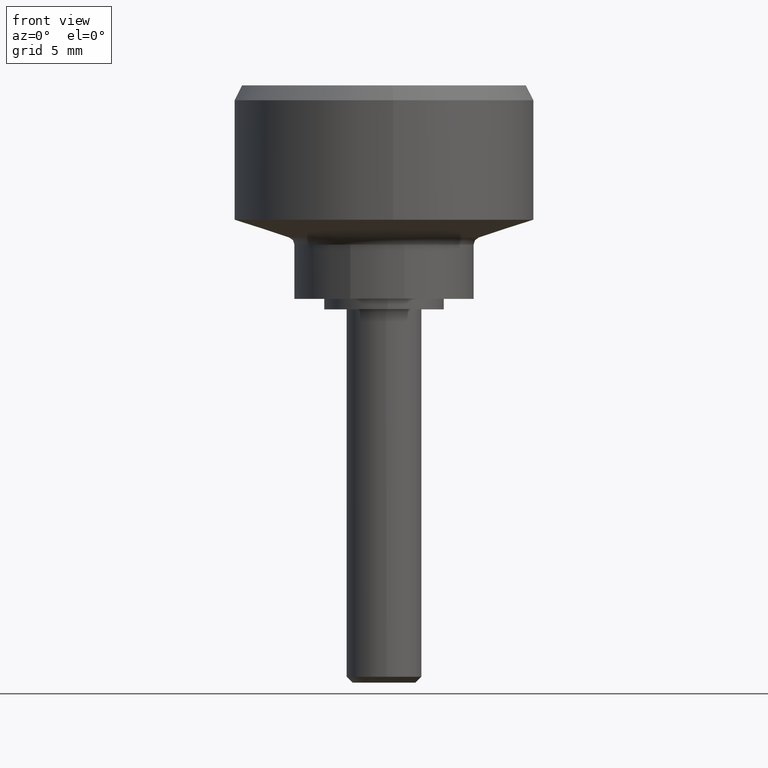
[diagram: clean part render]
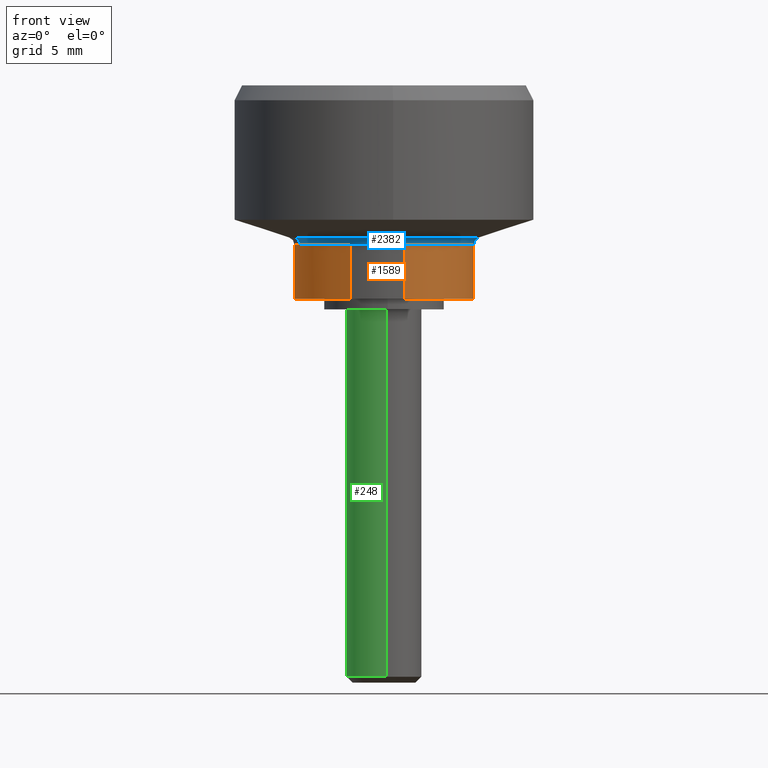
[diagram: same view with three faces highlighted in distinct colors, each labeled with its STEP entity id]
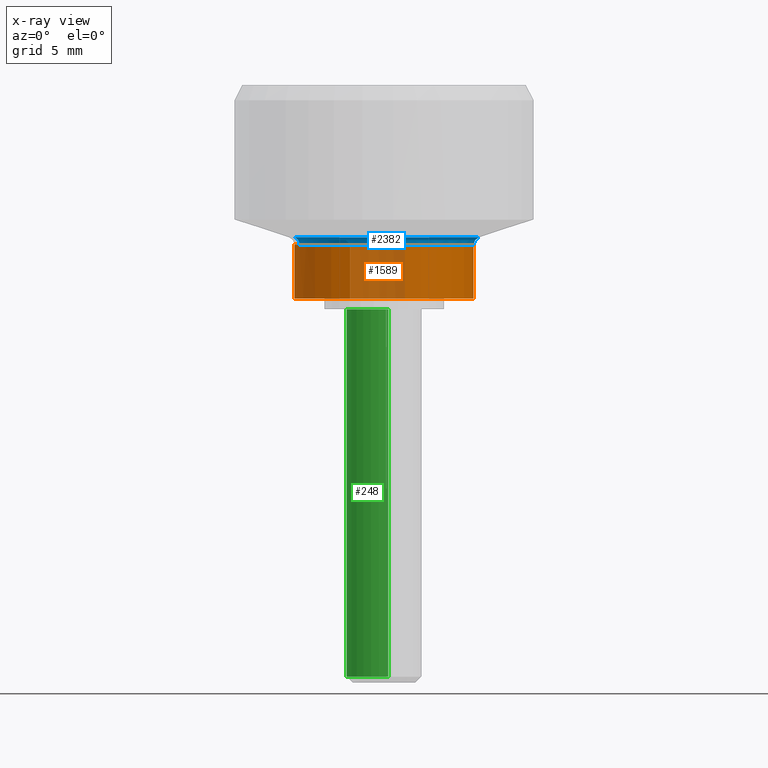
[diagram: x-ray of the same camera — body ghosted, the three highlighted faces saturated]
A machine part, front view with three faces highlighted in distinct colors.
The next image is the same camera in x-ray (body ghosted, the three faces saturated) — at least one of them is partly hidden behind the body in this view.
Their STEP definitions:

[orange] entity #1589 — the highlighted face is a freeform B-spline surface patch.
#1423=CARTESIAN_POINT('',(-2.250411537958607,-5.561982372304211,4.427679925209729));
#1424=CARTESIAN_POINT('',(-5.113267461140326,-4.403653638088490,4.427679925209729));
#1425=CARTESIAN_POINT('',(-5.834219522386058,-1.400672183135433,4.427679925209728));
#1426=CARTESIAN_POINT('',(-7.234891705521491,4.433547339250625,4.427679925209729));
#1427=CARTESIAN_POINT('',(-1.400672183135433,5.834219522386058,4.427679925209728));
#1428=CARTESIAN_POINT('',(4.433547339250625,7.234891705521491,4.427679925209729));
#1429=CARTESIAN_POINT('',(5.834219522386058,1.400672183135433,4.427679925209728));
#1430=CARTESIAN_POINT('',(7.234891705521491,-4.433547339250625,4.427679925209729));
#1431=CARTESIAN_POINT('',(1.400672183135433,-5.834219522386058,4.427679925209728));
#1432=CARTESIAN_POINT('',(-2.250411537958607,-5.561982372304211,0.606812101869865));
#1433=CARTESIAN_POINT('',(-5.113267461140326,-4.403653638088490,0.606812101869865));
#1434=CARTESIAN_POINT('',(-5.834219522386058,-1.400672183135433,0.606812101869865));
#1435=CARTESIAN_POINT('',(-7.234891705521491,4.433547339250625,0.606812101869865));
#1436=CARTESIAN_POINT('',(-1.400672183135433,5.834219522386058,0.606812101869865));
#1437=CARTESIAN_POINT('',(4.433547339250625,7.234891705521491,0.606812101869865));
#1438=CARTESIAN_POINT('',(5.834219522386058,1.400672183135433,0.606812101869865));
#1439=CARTESIAN_POINT('',(7.234891705521491,-4.433547339250625,0.606812101869865));
#1440=CARTESIAN_POINT('',(1.400672183135433,-5.834219522386058,0.606812101869865));
#1448=(BOUNDED_SURFACE()B_SPLINE_SURFACE(2,1,((#1423,#1432),(#1424,#1433),(#1425,#1434),(#1426,#1435),(#1427,#1436),(#1428,#1437),(#1429,#1438),(#1430,#1439),(#1431,#1440)),.UNSPECIFIED.,.F.,.F.,.U.)B_SPLINE_SURFACE_WITH_KNOTS((3,2,2,2,3),(2,2),(0.0,5.964675298172566,15.905800795126840,25.846926292081118,35.788051789035400),(0.0,3.820867823339863),.UNSPECIFIED.)GEOMETRIC_REPRESENTATION_ITEM()RATIONAL_B_SPLINE_SURFACE(((0.859411254969543,0.859411254969543),(0.824264068711928,0.824264068711928),(1.0,1.0),(0.707106781186548,0.707106781186548),(1.0,1.0),(0.707106781186548,0.707106781186548),(1.0,1.0),(0.707106781186548,0.707106781186548),(1.0,1.0)))REPRESENTATION_ITEM('')SURFACE());
#1449=CARTESIAN_POINT('',(-2.250411537961152,-5.561982372302829,4.336761000021973));
#1450=VERTEX_POINT('',#1449);
#1451=CARTESIAN_POINT('',(-5.657943215354542,-1.996917267145412,4.336761000200806));
#1452=VERTEX_POINT('',#1451);
#1453=CARTESIAN_POINT('',(-2.250411537961152,-5.561982372302829,4.336761000021974));
#1454=CARTESIAN_POINT('',(-4.757738268930517,-4.547502888705879,4.336761000072861));
#1455=CARTESIAN_POINT('',(-5.657943215354542,-1.996917267145411,4.336761000200806));
#1463=(BOUNDED_CURVE()B_SPLINE_CURVE(2,(#1453,#1454,#1455),.UNSPECIFIED.,.F.,.U.)B_SPLINE_CURVE_WITH_KNOTS((3,3),(0.813681137942557,0.943451214484285),.UNSPECIFIED.)CURVE()GEOMETRIC_REPRESENTATION_ITEM()RATIONAL_B_SPLINE_CURVE((0.888794329336719,0.814213373906478,0.897469272749087))REPRESENTATION_ITEM(''));
#1464=EDGE_CURVE('',#1450,#1452,#1463,.T.);
#1465=ORIENTED_EDGE('',*,*,#1464,.T.);
#1466=CARTESIAN_POINT('',(-6.0,0.0,4.336761000000000));
#1467=VERTEX_POINT('',#1466);
#1468=CARTESIAN_POINT('',(-5.657943215354542,-1.996917267145412,4.336761000200806));
#1469=CARTESIAN_POINT('',(-6.0,-1.027754500222599,4.336761000000000));
#1470=CARTESIAN_POINT('',(-6.0,0.0,4.336761000000000));
#1478=(BOUNDED_CURVE()B_SPLINE_CURVE(2,(#1468,#1469,#1470),.UNSPECIFIED.,.F.,.U.)B_SPLINE_CURVE_WITH_KNOTS((3,3),(0.943451214484285,1.0),.UNSPECIFIED.)CURVE()GEOMETRIC_REPRESENTATION_ITEM()RATIONAL_B_SPLINE_CURVE((0.897469272749087,0.933748976761243,1.0))REPRESENTATION_ITEM(''));
#1479=EDGE_CURVE('',#1452,#1467,#1478,.T.);
#1480=ORIENTED_EDGE('',*,*,#1479,.T.);
#1481=CARTESIAN_POINT('',(-2.953789897803649,5.222559261476416,4.336761000204615));
#1482=VERTEX_POINT('',#1481);
#1483=CARTESIAN_POINT('',(-6.0,0.0,4.336761000000000));
#1484=CARTESIAN_POINT('',(-5.999999999999999,3.499675101438450,4.336760999999998));
#1485=CARTESIAN_POINT('',(-2.953789897803649,5.222559261476416,4.336761000204616));
#1493=(BOUNDED_CURVE()B_SPLINE_CURVE(2,(#1483,#1484,#1485),.UNSPECIFIED.,.F.,.U.)B_SPLINE_CURVE_WITH_KNOTS((3,3),(0.0,0.166092119980802),.UNSPECIFIED.)CURVE()GEOMETRIC_REPRESENTATION_ITEM()RATIONAL_B_SPLINE_CURVE((1.0,0.805410977437091,0.869379581133907))REPRESENTATION_ITEM(''));
#1494=EDGE_CURVE('',#1467,#1482,#1493,.T.);
#1495=ORIENTED_EDGE('',*,*,#1494,.T.);
#1496=CARTESIAN_POINT('',(6.0,0.0,4.336761000000000));
#1497=VERTEX_POINT('',#1496);
#1498=CARTESIAN_POINT('',(-2.953789897803649,5.222559261476416,4.336761000204616));
#1499=CARTESIAN_POINT('',(-1.579206576138345,6.0,4.336761000000000));
#1500=CARTESIAN_POINT('',(0.0,6.0,4.336761000000000));
#1501=CARTESIAN_POINT('',(6.0,6.0,4.336760999999999));
#1502=CARTESIAN_POINT('',(6.0,0.0,4.336761000000000));
#1510=(BOUNDED_CURVE()B_SPLINE_CURVE(2,(#1498,#1499,#1500,#1501,#1502),.UNSPECIFIED.,.F.,.U.)B_SPLINE_CURVE_WITH_KNOTS((3,2,3),(0.166092119980802,0.250000000000000,0.500000000000000),.UNSPECIFIED.)CURVE()GEOMETRIC_REPRESENTATION_ITEM()RATIONAL_B_SPLINE_CURVE((0.869379581133907,0.901695803749456,1.0,0.707106781186548,1.0))REPRESENTATION_ITEM(''));
#1511=EDGE_CURVE('',#1482,#1497,#1510,.T.);
#1512=ORIENTED_EDGE('',*,*,#1511,.T.);
#1513=CARTESIAN_POINT('',(1.400667270744406,-5.834220701742426,4.336761000000084));
#1514=VERTEX_POINT('',#1513);
#1515=CARTESIAN_POINT('',(6.0,0.0,4.336761000000000));
#1516=CARTESIAN_POINT('',(6.0,-4.730022703337070,4.336761000000000));
#1517=CARTESIAN_POINT('',(1.400667270744407,-5.834220701742426,4.336761000000085));
#1525=(BOUNDED_CURVE()B_SPLINE_CURVE(2,(#1515,#1516,#1517),.UNSPECIFIED.,.F.,.U.)B_SPLINE_CURVE_WITH_KNOTS((3,3),(0.500000000000000,0.710109967540306),.UNSPECIFIED.)CURVE()GEOMETRIC_REPRESENTATION_ITEM()RATIONAL_B_SPLINE_CURVE((1.0,0.753840861209320,0.921445631707115))REPRESENTATION_ITEM(''));
#1526=EDGE_CURVE('',#1497,#1514,#1525,.T.);
#1527=ORIENTED_EDGE('',*,*,#1526,.T.);
#1528=CARTESIAN_POINT('',(1.400667329988205,-5.834220687519354,0.700004000000106));
#1529=VERTEX_POINT('',#1528);
#1530=CARTESIAN_POINT('',(1.400667270744406,-5.834220701742426,4.336761000000084));
#1531=CARTESIAN_POINT('',(1.400667329988205,-5.834220687519354,0.700004000000106));
#1532=QUASI_UNIFORM_CURVE('',1,(#1530,#1531),.UNSPECIFIED.,.F.,.U.);
#1533=EDGE_CURVE('',#1514,#1529,#1532,.T.);
#1534=ORIENTED_EDGE('',*,*,#1533,.T.);
#1535=CARTESIAN_POINT('',(6.0,0.0,0.700004000000106));
#1536=VERTEX_POINT('',#1535);
#1537=CARTESIAN_POINT('',(6.0,0.0,0.700004000000106));
#1538=CARTESIAN_POINT('',(6.000000000000001,-4.730022653941092,0.700004000000106));
#1539=CARTESIAN_POINT('',(1.400667329988206,-5.834220687519354,0.700004000000106));
#1547=(BOUNDED_CURVE()B_SPLINE_CURVE(2,(#1537,#1538,#1539),.UNSPECIFIED.,.F.,.U.)B_SPLINE_CURVE_WITH_KNOTS((3,3),(0.500000000000000,0.710109965886232),.UNSPECIFIED.)CURVE()GEOMETRIC_REPRESENTATION_ITEM()RATIONAL_B_SPLINE_CURVE((1.0,0.753840863147187,0.921445629068206))REPRESENTATION_ITEM(''));
#1548=EDGE_CURVE('',#1536,#1529,#1547,.T.);
#1549=ORIENTED_EDGE('',*,*,#1548,.F.);
#1550=CARTESIAN_POINT('',(-6.0,0.0,0.700004000000106));
#1551=VERTEX_POINT('',#1550);
#1552=CARTESIAN_POINT('',(-6.0,0.0,0.700004000000106));
#1553=CARTESIAN_POINT('',(-6.0,6.0,0.700004000000106));
#1554=CARTESIAN_POINT('',(0.0,6.0,0.700004000000106));
#1555=CARTESIAN_POINT('',(6.0,6.0,0.700004000000106));
#1556=CARTESIAN_POINT('',(6.0,0.0,0.700004000000106));
#1564=(BOUNDED_CURVE()B_SPLINE_CURVE(2,(#1552,#1553,#1554,#1555,#1556),.UNSPECIFIED.,.F.,.U.)B_SPLINE_CURVE_WITH_KNOTS((3,2,3),(0.0,0.250000000000000,0.500000000000000),.UNSPECIFIED.)CURVE()GEOMETRIC_REPRESENTATION_ITEM()RATIONAL_B_SPLINE_CURVE((1.0,0.707106781186548,1.0,0.707106781186548,1.0))REPRESENTATION_ITEM(''));
#1565=EDGE_CURVE('',#1551,#1536,#1564,.T.);
#1566=ORIENTED_EDGE('',*,*,#1565,.F.);
#1567=CARTESIAN_POINT('',(-2.250407903422638,-5.561983842856572,0.700004000000106));
#1568=VERTEX_POINT('',#1567);
#1569=CARTESIAN_POINT('',(-2.250407903422639,-5.561983842856572,0.700004000000106));
#1570=CARTESIAN_POINT('',(-6.0,-4.044879168131852,0.700004000000106));
#1571=CARTESIAN_POINT('',(-6.0,0.0,0.700004000000106));
#1579=(BOUNDED_CURVE()B_SPLINE_CURVE(2,(#1569,#1570,#1571),.UNSPECIFIED.,.F.,.U.)B_SPLINE_CURVE_WITH_KNOTS((3,3),(0.813681035271949,1.0),.UNSPECIFIED.)CURVE()GEOMETRIC_REPRESENTATION_ITEM()RATIONAL_B_SPLINE_CURVE((0.888794447349726,0.781713754779244,1.0))REPRESENTATION_ITEM(''));
#1580=EDGE_CURVE('',#1568,#1551,#1579,.T.);
#1581=ORIENTED_EDGE('',*,*,#1580,.F.);
#1582=CARTESIAN_POINT('',(-2.250411537961152,-5.561982372302829,4.336761000021973));
#1583=CARTESIAN_POINT('',(-2.250407903422638,-5.561983842856572,0.700004000000106));
#1584=QUASI_UNIFORM_CURVE('',1,(#1582,#1583),.UNSPECIFIED.,.F.,.U.);
#1585=EDGE_CURVE('',#1450,#1568,#1584,.T.);
#1586=ORIENTED_EDGE('',*,*,#1585,.F.);
#1587=EDGE_LOOP('',(#1465,#1480,#1495,#1512,#1527,#1534,#1549,#1566,#1581,#1586));
#1588=FACE_OUTER_BOUND('',#1587,.T.);
#1589=ADVANCED_FACE('',(#1588),#1448,.T.);

[blue] entity #2382 — the highlighted face is a freeform B-spline surface patch.
#1449=CARTESIAN_POINT('',(-2.250411537961152,-5.561982372302829,4.336761000021973));
#1450=VERTEX_POINT('',#1449);
#1451=CARTESIAN_POINT('',(-5.657943215354542,-1.996917267145412,4.336761000200806));
#1452=VERTEX_POINT('',#1451);
#1453=CARTESIAN_POINT('',(-2.250411537961152,-5.561982372302829,4.336761000021974));
#1454=CARTESIAN_POINT('',(-4.757738268930517,-4.547502888705879,4.336761000072861));
#1455=CARTESIAN_POINT('',(-5.657943215354542,-1.996917267145411,4.336761000200806));
#1463=(BOUNDED_CURVE()B_SPLINE_CURVE(2,(#1453,#1454,#1455),.UNSPECIFIED.,.F.,.U.)B_SPLINE_CURVE_WITH_KNOTS((3,3),(0.813681137942557,0.943451214484285),.UNSPECIFIED.)CURVE()GEOMETRIC_REPRESENTATION_ITEM()RATIONAL_B_SPLINE_CURVE((0.888794329336719,0.814213373906478,0.897469272749087))REPRESENTATION_ITEM(''));
#1464=EDGE_CURVE('',#1450,#1452,#1463,.T.);
#1481=CARTESIAN_POINT('',(-2.953789897803649,5.222559261476416,4.336761000204615));
#1482=VERTEX_POINT('',#1481);
#1496=CARTESIAN_POINT('',(6.0,0.0,4.336761000000000));
#1497=VERTEX_POINT('',#1496);
#1498=CARTESIAN_POINT('',(-2.953789897803649,5.222559261476416,4.336761000204616));
#1499=CARTESIAN_POINT('',(-1.579206576138345,6.0,4.336761000000000));
#1500=CARTESIAN_POINT('',(0.0,6.0,4.336761000000000));
#1501=CARTESIAN_POINT('',(6.0,6.0,4.336760999999999));
#1502=CARTESIAN_POINT('',(6.0,0.0,4.336761000000000));
#1510=(BOUNDED_CURVE()B_SPLINE_CURVE(2,(#1498,#1499,#1500,#1501,#1502),.UNSPECIFIED.,.F.,.U.)B_SPLINE_CURVE_WITH_KNOTS((3,2,3),(0.166092119980802,0.250000000000000,0.500000000000000),.UNSPECIFIED.)CURVE()GEOMETRIC_REPRESENTATION_ITEM()RATIONAL_B_SPLINE_CURVE((0.869379581133907,0.901695803749456,1.0,0.707106781186548,1.0))REPRESENTATION_ITEM(''));
#1511=EDGE_CURVE('',#1482,#1497,#1510,.T.);
#1513=CARTESIAN_POINT('',(1.400667270744406,-5.834220701742426,4.336761000000084));
#1514=VERTEX_POINT('',#1513);
#1515=CARTESIAN_POINT('',(6.0,0.0,4.336761000000000));
#1516=CARTESIAN_POINT('',(6.0,-4.730022703337070,4.336761000000000));
#1517=CARTESIAN_POINT('',(1.400667270744407,-5.834220701742426,4.336761000000085));
#1525=(BOUNDED_CURVE()B_SPLINE_CURVE(2,(#1515,#1516,#1517),.UNSPECIFIED.,.F.,.U.)B_SPLINE_CURVE_WITH_KNOTS((3,3),(0.500000000000000,0.710109967540306),.UNSPECIFIED.)CURVE()GEOMETRIC_REPRESENTATION_ITEM()RATIONAL_B_SPLINE_CURVE((1.0,0.753840861209320,0.921445631707115))REPRESENTATION_ITEM(''));
#1526=EDGE_CURVE('',#1497,#1514,#1525,.T.);
#1604=CARTESIAN_POINT('',(1.400667270744407,-5.834220701742426,4.336761000000085));
#1605=CARTESIAN_POINT('',(0.710144236470980,-5.999999999999998,4.336761000000000));
#1606=CARTESIAN_POINT('',(0.0,-6.0,4.336761000000000));
#1607=CARTESIAN_POINT('',(-1.167833403735920,-6.0,4.336761000000000));
#1608=CARTESIAN_POINT('',(-2.250411537961152,-5.561982372302829,4.336761000021974));
#1616=(BOUNDED_CURVE()B_SPLINE_CURVE(2,(#1604,#1605,#1606,#1607,#1608),.UNSPECIFIED.,.F.,.U.)B_SPLINE_CURVE_WITH_KNOTS((3,2,3),(0.710109967540306,0.750000000000000,0.813681137942557),.UNSPECIFIED.)CURVE()GEOMETRIC_REPRESENTATION_ITEM()RATIONAL_B_SPLINE_CURVE((0.921445631707115,0.953265919977228,1.0,0.925392906121203,0.888794329336719))REPRESENTATION_ITEM(''));
#1617=EDGE_CURVE('',#1514,#1450,#1616,.T.);
#1674=CARTESIAN_POINT('',(-1.588775553529751,6.143339237225591,4.812278946800051));
#1675=VERTEX_POINT('',#1674);
#1681=CARTESIAN_POINT('',(-3.123857866212917,5.523254325850536,4.812278568579362));
#1682=VERTEX_POINT('',#1681);
#1683=CARTESIAN_POINT('',(-3.123857866212916,5.523254325850536,4.812278568579362));
#1684=CARTESIAN_POINT('',(-2.397111881622605,5.934289303143255,4.812278784254910));
#1685=CARTESIAN_POINT('',(-1.588775553529752,6.143339237225590,4.812278946800051));
#1693=(BOUNDED_CURVE()B_SPLINE_CURVE(2,(#1683,#1684,#1685),.UNSPECIFIED.,.F.,.U.)B_SPLINE_CURVE_WITH_KNOTS((3,3),(0.166092119980571,0.207273770511149),.UNSPECIFIED.)CURVE()GEOMETRIC_REPRESENTATION_ITEM()RATIONAL_B_SPLINE_CURVE((0.869379581133729,0.885240253408013,0.916996154818404))REPRESENTATION_ITEM(''));
#1694=EDGE_CURVE('',#1682,#1675,#1693,.T.);
#1711=CARTESIAN_POINT('',(-5.983706027534104,-2.111892154719563,4.812278568087341));
#1712=VERTEX_POINT('',#1711);
#1726=CARTESIAN_POINT('',(1.588775549495736,-6.143339221656346,4.812279000004396));
#1727=VERTEX_POINT('',#1726);
#1728=CARTESIAN_POINT('',(1.588775549495735,-6.143339221656346,4.812279000004396));
#1729=CARTESIAN_POINT('',(0.807244089320079,-6.345457000000001,4.812279000000100));
#1730=CARTESIAN_POINT('',(0.0,-6.345457000000000,4.812279000000100));
#1731=CARTESIAN_POINT('',(-4.489509417337906,-6.345457000000000,4.812279000000100));
#1732=CARTESIAN_POINT('',(-5.983706027534104,-2.111892154719563,4.812278568087341));
#1740=(BOUNDED_CURVE()B_SPLINE_CURVE(2,(#1728,#1729,#1730,#1731,#1732),.UNSPECIFIED.,.F.,.U.)B_SPLINE_CURVE_WITH_KNOTS((3,2,3),(0.707273770284029,0.750000000000000,0.943451214480526),.UNSPECIFIED.)CURVE()GEOMETRIC_REPRESENTATION_ITEM()RATIONAL_B_SPLINE_CURVE((0.916996154468132,0.949943108202906,1.0,0.773357804429709,0.897469272744263))REPRESENTATION_ITEM(''));
#1741=EDGE_CURVE('',#1727,#1712,#1740,.T.);
#1847=CARTESIAN_POINT('',(6.345457000000000,0.0,4.812279000000100));
#1848=VERTEX_POINT('',#1847);
#1849=CARTESIAN_POINT('',(6.345457000000000,0.0,4.812279000000100));
#1850=CARTESIAN_POINT('',(6.345457000000000,-4.913177755189087,4.812279000000100));
#1851=CARTESIAN_POINT('',(1.588775549495736,-6.143339221656346,4.812279000004396));
#1859=(BOUNDED_CURVE()B_SPLINE_CURVE(2,(#1849,#1850,#1851),.UNSPECIFIED.,.F.,.U.)B_SPLINE_CURVE_WITH_KNOTS((3,3),(0.500000000000000,0.707273770284029),.UNSPECIFIED.)CURVE()GEOMETRIC_REPRESENTATION_ITEM()RATIONAL_B_SPLINE_CURVE((1.0,0.757163672983643,0.916996154468131))REPRESENTATION_ITEM(''));
#1860=EDGE_CURVE('',#1848,#1727,#1859,.T.);
#1862=CARTESIAN_POINT('',(-1.588775553529751,6.143339237225591,4.812278946800052));
#1863=CARTESIAN_POINT('',(-0.807244084802905,6.345457000000000,4.812279000000100));
#1864=CARTESIAN_POINT('',(0.0,6.345457000000000,4.812279000000100));
#1865=CARTESIAN_POINT('',(6.345457000000001,6.345457000000001,4.812279000000099));
#1866=CARTESIAN_POINT('',(6.345457000000000,0.0,4.812279000000100));
#1874=(BOUNDED_CURVE()B_SPLINE_CURVE(2,(#1862,#1863,#1864,#1865,#1866),.UNSPECIFIED.,.F.,.U.)B_SPLINE_CURVE_WITH_KNOTS((3,2,3),(0.207273770511149,0.250000000000000,0.500000000000000),.UNSPECIFIED.)CURVE()GEOMETRIC_REPRESENTATION_ITEM()RATIONAL_B_SPLINE_CURVE((0.916996154818404,0.949943108468992,1.0,0.707106781186548,1.0))REPRESENTATION_ITEM(''));
#1875=EDGE_CURVE('',#1675,#1848,#1874,.T.);
#2311=CARTESIAN_POINT('',(-2.954206743271632,5.223298383647160,4.307643242224983));
#2312=CARTESIAN_POINT('',(-2.494850538388116,5.483102265860568,4.307643242224983));
#2313=CARTESIAN_POINT('',(-1.997199685781460,5.658743403063712,4.307643242224984));
#2314=CARTESIAN_POINT('',(3.661543717282250,7.655943088845171,4.307643242224984));
#2315=CARTESIAN_POINT('',(5.658743403063712,1.997199685781460,4.307643242224984));
#2316=CARTESIAN_POINT('',(7.655943088845173,-3.661543717282249,4.307643242224984));
#2317=CARTESIAN_POINT('',(1.997199685781462,-5.658743403063711,4.307643242224984));
#2318=CARTESIAN_POINT('',(-3.661543717282247,-7.655943088845173,4.307643242224984));
#2319=CARTESIAN_POINT('',(-5.658743403063711,-1.997199685781462,4.307643242224984));
#2320=CARTESIAN_POINT('',(-2.942461681485401,5.202532077299922,4.716622689690920));
#2321=CARTESIAN_POINT('',(-2.484931742492223,5.461303055280798,4.716622689690920));
#2322=CARTESIAN_POINT('',(-1.989259404092519,5.636245894704561,4.716622689690920));
#2323=CARTESIAN_POINT('',(3.646986490612040,7.625505298797078,4.716622689690919));
#2324=CARTESIAN_POINT('',(5.636245894704561,1.989259404092519,4.716622689690920));
#2325=CARTESIAN_POINT('',(7.625505298797081,-3.646986490612038,4.716622689690919));
#2326=CARTESIAN_POINT('',(1.989259404092520,-5.636245894704559,4.716622689690920));
#2327=CARTESIAN_POINT('',(-3.646986490612037,-7.625505298797081,4.716622689690919));
#2328=CARTESIAN_POINT('',(-5.636245894704559,-1.989259404092520,4.716622689690920));
#2329=CARTESIAN_POINT('',(-3.137560473841117,5.547483969744176,4.820439969204876));
#2330=CARTESIAN_POINT('',(-2.649694187861396,5.823412658093363,4.820439969204876));
#2331=CARTESIAN_POINT('',(-2.121156485323084,6.009955015335018,4.820439969204877));
#2332=CARTESIAN_POINT('',(3.888798530011934,8.131111500658102,4.820439969204878));
#2333=CARTESIAN_POINT('',(6.009955015335018,2.121156485323084,4.820439969204877));
#2334=CARTESIAN_POINT('',(8.131111500658104,-3.888798530011931,4.820439969204878));
#2335=CARTESIAN_POINT('',(2.121156485323085,-6.009955015335018,4.820439969204877));
#2336=CARTESIAN_POINT('',(-3.888798530011931,-8.131111500658104,4.820439969204878));
#2337=CARTESIAN_POINT('',(-6.009955015335018,-2.121156485323086,4.820439969204877));
#2345=(BOUNDED_SURFACE()B_SPLINE_SURFACE(2,2,((#2311,#2320,#2329),(#2312,#2321,#2330),(#2313,#2322,#2331),(#2314,#2323,#2332),(#2315,#2324,#2333),(#2316,#2325,#2334),(#2317,#2326,#2335),(#2318,#2327,#2336),(#2319,#2328,#2337)),.UNSPECIFIED.,.F.,.F.,.U.)B_SPLINE_SURFACE_WITH_KNOTS((3,2,2,2,3),(3,3),(0.0,1.267152909524581,11.826770559332230,22.386388209139881,32.946005858947530),(0.0,0.714713974112942),.UNSPECIFIED.)GEOMETRIC_REPRESENTATION_ITEM()RATIONAL_B_SPLINE_SURFACE(((0.859647269820303,0.666406578940087,0.863418562288582),(0.884124148880021,0.685381283810291,0.888002821983225),(0.916330558996146,0.710347993225788,0.920350522365911),(0.647943552074635,0.502291883012210,0.650786095433517),(0.916330558996146,0.710347993225788,0.920350522365911),(0.647943552074635,0.502291883012210,0.650786095433517),(0.916330558996146,0.710347993225788,0.920350522365911),(0.647943552074635,0.502291883012210,0.650786095433517),(0.916330558996146,0.710347993225788,0.920350522365911)))REPRESENTATION_ITEM('')SURFACE());
#2346=ORIENTED_EDGE('',*,*,#1511,.F.);
#2347=CARTESIAN_POINT('',(-2.953789897803649,5.222559261476416,4.336761000204615));
#2348=CARTESIAN_POINT('',(-2.953789897949436,5.222559261735518,4.700004775265716));
#2349=CARTESIAN_POINT('',(-3.123857866212917,5.523254325850536,4.812278568579362));
#2357=(BOUNDED_CURVE()B_SPLINE_CURVE(2,(#2347,#2348,#2349),.UNSPECIFIED.,.F.,.U.)B_SPLINE_CURVE_WITH_KNOTS((3,3),(-1.673208011470673,-0.312327418435186),.UNSPECIFIED.)CURVE()GEOMETRIC_REPRESENTATION_ITEM()RATIONAL_B_SPLINE_CURVE((0.842900705059016,0.683324374722807,0.846329367487545))REPRESENTATION_ITEM(''));
#2358=EDGE_CURVE('',#1482,#1682,#2357,.T.);
#2359=ORIENTED_EDGE('',*,*,#2358,.T.);
#2360=ORIENTED_EDGE('',*,*,#1694,.T.);
#2361=ORIENTED_EDGE('',*,*,#1875,.T.);
#2362=ORIENTED_EDGE('',*,*,#1860,.T.);
#2363=ORIENTED_EDGE('',*,*,#1741,.T.);
#2364=CARTESIAN_POINT('',(-5.657943215354542,-1.996917267145412,4.336761000200806));
#2365=CARTESIAN_POINT('',(-5.657943215632317,-1.996917267235025,4.700004772831894));
#2366=CARTESIAN_POINT('',(-5.983706027534104,-2.111892154719563,4.812278568087341));
#2374=(BOUNDED_CURVE()B_SPLINE_CURVE(2,(#2364,#2365,#2366),.UNSPECIFIED.,.F.,.U.)B_SPLINE_CURVE_WITH_KNOTS((3,3),(-1.673208011488283,-0.312327425821710),.UNSPECIFIED.)CURVE()GEOMETRIC_REPRESENTATION_ITEM()RATIONAL_B_SPLINE_CURVE((0.898479810628169,0.728381352497363,0.902134549979336))REPRESENTATION_ITEM(''));
#2375=EDGE_CURVE('',#1452,#1712,#2374,.T.);
#2376=ORIENTED_EDGE('',*,*,#2375,.F.);
#2377=ORIENTED_EDGE('',*,*,#1464,.F.);
#2378=ORIENTED_EDGE('',*,*,#1617,.F.);
#2379=ORIENTED_EDGE('',*,*,#1526,.F.);
#2380=EDGE_LOOP('',(#2346,#2359,#2360,#2361,#2362,#2363,#2376,#2377,#2378,#2379));
#2381=FACE_OUTER_BOUND('',#2380,.T.);
#2382=ADVANCED_FACE('',(#2381),#2345,.F.);

[green] entity #248 — the highlighted face is a freeform B-spline surface patch.
#62=CARTESIAN_POINT('',(0.285251661940328,2.483672983579013,-24.599997999999999));
#63=VERTEX_POINT('',#62);
#79=CARTESIAN_POINT('',(0.285250539442688,2.483673112498176,-5.917144E-016));
#80=VERTEX_POINT('',#79);
#81=CARTESIAN_POINT('',(0.285250539442688,2.483673112498176,-5.917144E-016));
#82=CARTESIAN_POINT('',(0.285251661940328,2.483672983579013,-24.599997999999999));
#83=QUASI_UNIFORM_CURVE('',1,(#81,#82),.UNSPECIFIED.,.F.,.U.);
#84=EDGE_CURVE('',#80,#63,#83,.T.);
#101=CARTESIAN_POINT('',(0.152621348853941,-2.495336996053640,8.881784E-016));
#102=VERTEX_POINT('',#101);
#116=CARTESIAN_POINT('',(0.174384544190110,-2.493815165199528,-24.599997999985469));
#117=VERTEX_POINT('',#116);
#118=CARTESIAN_POINT('',(0.152621348853941,-2.495336996053640,8.881784E-016));
#119=CARTESIAN_POINT('',(0.174384544190110,-2.493815165199528,-24.599997999985469));
#120=QUASI_UNIFORM_CURVE('',1,(#118,#119),.UNSPECIFIED.,.F.,.U.);
#121=EDGE_CURVE('',#102,#117,#120,.T.);
#139=CARTESIAN_POINT('',(0.211333953027566,-2.491745979346523,0.614999950000001));
#140=CARTESIAN_POINT('',(0.182121404719888,-2.493532695342293,0.614999950000001));
#141=CARTESIAN_POINT('',(-2.342715647217524,-2.647958344891809,0.614999950000001));
#142=CARTESIAN_POINT('',(-2.495336996054667,-0.152621348837143,0.614999950000001));
#143=CARTESIAN_POINT('',(-2.647958344891809,2.342715647217524,0.614999950000001));
#144=CARTESIAN_POINT('',(-0.152621348837143,2.495336996054667,0.614999950000001));
#145=CARTESIAN_POINT('',(0.066828045241367,2.508759095986944,0.614999950000001));
#146=CARTESIAN_POINT('',(0.305203193733715,2.481381535534871,0.614999950000001));
#147=CARTESIAN_POINT('',(0.325255889532129,2.479078468730632,0.614999950000001));
#148=CARTESIAN_POINT('',(0.211333953027566,-2.491745979346523,-25.230372948750016));
#149=CARTESIAN_POINT('',(0.182121404719888,-2.493532695342293,-25.230372948750016));
#150=CARTESIAN_POINT('',(-2.342715647217524,-2.647958344891809,-25.230372948750006));
#151=CARTESIAN_POINT('',(-2.495336996054667,-0.152621348837143,-25.230372948750009));
#152=CARTESIAN_POINT('',(-2.647958344891809,2.342715647217524,-25.230372948750006));
#153=CARTESIAN_POINT('',(-0.152621348837143,2.495336996054667,-25.230372948750009));
#154=CARTESIAN_POINT('',(0.066828045241367,2.508759095986944,-25.230372948750013));
#155=CARTESIAN_POINT('',(0.305203193733715,2.481381535534871,-25.230372948750020));
#156=CARTESIAN_POINT('',(0.325255889532129,2.479078468730632,-25.230372948750016));
#164=(BOUNDED_SURFACE()B_SPLINE_SURFACE(2,1,((#139,#148),(#140,#149),(#141,#150),(#142,#151),(#143,#152),(#144,#153),(#145,#154),(#146,#155),(#147,#156)),.UNSPECIFIED.,.F.,.F.,.U.)B_SPLINE_SURFACE_WITH_KNOTS((3,1,2,2,1,3),(2,2),(0.0,0.069592886533412,4.211728510264361,8.353864133995311,8.850920408843026,8.894954837857847),(0.0,25.845372898750021),.UNSPECIFIED.)GEOMETRIC_REPRESENTATION_ITEM()RATIONAL_B_SPLINE_SURFACE(((1.009841920398024,1.009841920398024),(1.004920960199012,1.004920960199012),(0.707106781186548,0.707106781186548),(1.0,1.0),(0.707106781186548,0.707106781186548),(1.0,1.0),(0.964852813742386,0.964852813742386),(0.935774536891082,0.935774536891082),(0.933408121595566,0.933408121595566)))REPRESENTATION_ITEM('')SURFACE());
#165=CARTESIAN_POINT('',(-0.196147739543076,2.492293334344388,-24.599997999970942));
#166=VERTEX_POINT('',#165);
#167=CARTESIAN_POINT('',(-0.196147739543076,2.492293334344387,-24.599997999970931));
#168=CARTESIAN_POINT('',(-0.098225267741383,2.500000000000000,-24.599998000000003));
#169=CARTESIAN_POINT('',(0.0,2.500000000000000,-24.599997999999999));
#170=CARTESIAN_POINT('',(0.143093087653543,2.500000000000000,-24.599998000000006));
#171=CARTESIAN_POINT('',(0.285251661940328,2.483672983579013,-24.599998000000006));
#179=(BOUNDED_CURVE()B_SPLINE_CURVE(2,(#167,#168,#169,#170,#171),.UNSPECIFIED.,.F.,.U.)B_SPLINE_CURVE_WITH_KNOTS((3,2,3),(0.236331300602340,0.250000000000000,0.269767755888796),.UNSPECIFIED.)CURVE()GEOMETRIC_REPRESENTATION_ITEM()RATIONAL_B_SPLINE_CURVE((0.969723356108317,0.983986122545704,1.0,0.976840633396047,0.957343736436623))REPRESENTATION_ITEM(''));
#180=EDGE_CURVE('',#166,#63,#179,.T.);
#181=ORIENTED_EDGE('',*,*,#180,.F.);
#182=CARTESIAN_POINT('',(-2.500000000000000,0.0,-24.599997999999999));
#183=VERTEX_POINT('',#182);
#184=CARTESIAN_POINT('',(-2.500000000000000,0.0,-24.599997999999999));
#185=CARTESIAN_POINT('',(-2.500000000000000,2.310976228734067,-24.599998000000003));
#186=CARTESIAN_POINT('',(-0.196147739543076,2.492293334344388,-24.599997999970931));
#194=(BOUNDED_CURVE()B_SPLINE_CURVE(2,(#184,#185,#186),.UNSPECIFIED.,.F.,.U.)B_SPLINE_CURVE_WITH_KNOTS((3,3),(0.0,0.236331300602340),.UNSPECIFIED.)CURVE()GEOMETRIC_REPRESENTATION_ITEM()RATIONAL_B_SPLINE_CURVE((1.0,0.723120658640844,0.969723356108318))REPRESENTATION_ITEM(''));
#195=EDGE_CURVE('',#183,#166,#194,.T.);
#196=ORIENTED_EDGE('',*,*,#195,.F.);
#197=CARTESIAN_POINT('',(0.174384544190110,-2.493815165199528,-24.599997999985469));
#198=CARTESIAN_POINT('',(0.087295391621481,-2.499906585710495,-24.599997999985703));
#199=CARTESIAN_POINT('',(-0.000006416221653,-2.499908243756354,-24.599997999985959));
#200=CARTESIAN_POINT('',(-2.500003096081127,-2.499955723977494,-24.599997999993231));
#201=CARTESIAN_POINT('',(-2.500000000000000,0.0,-24.599997999999999));
#209=(BOUNDED_CURVE()B_SPLINE_CURVE(2,(#197,#198,#199,#200,#201),.UNSPECIFIED.,.F.,.U.)B_SPLINE_CURVE_WITH_KNOTS((3,2,3),(0.737829682989323,0.750000000000000,1.0),.UNSPECIFIED.)CURVE()GEOMETRIC_REPRESENTATION_ITEM()RATIONAL_B_SPLINE_CURVE((0.972871408692856,0.985741586707050,1.0,0.707106781186548,1.0))REPRESENTATION_ITEM(''));
#210=EDGE_CURVE('',#117,#183,#209,.T.);
#211=ORIENTED_EDGE('',*,*,#210,.F.);
#212=ORIENTED_EDGE('',*,*,#121,.F.);
#213=CARTESIAN_POINT('',(-2.500000000000000,0.0,0.0));
#214=VERTEX_POINT('',#213);
#215=CARTESIAN_POINT('',(0.152621348853941,-2.495336996053640,8.881784E-016));
#216=CARTESIAN_POINT('',(0.076381908263318,-2.500000000000000,0.0));
#217=CARTESIAN_POINT('',(0.0,-2.500000000000000,0.0));
#218=CARTESIAN_POINT('',(-2.500000000000000,-2.500000000000000,0.0));
#219=CARTESIAN_POINT('',(-2.500000000000000,0.0,0.0));
#227=(BOUNDED_CURVE()B_SPLINE_CURVE(2,(#215,#216,#217,#218,#219),.UNSPECIFIED.,.F.,.U.)B_SPLINE_CURVE_WITH_KNOTS((3,2,3),(0.739332962239645,0.750000000000000,1.0),.UNSPECIFIED.)CURVE()GEOMETRIC_REPRESENTATION_ITEM()RATIONAL_B_SPLINE_CURVE((0.976072041668223,0.987502787900660,1.0,0.707106781186548,1.0))REPRESENTATION_ITEM(''));
#228=EDGE_CURVE('',#102,#214,#227,.T.);
#229=ORIENTED_EDGE('',*,*,#228,.T.);
#230=CARTESIAN_POINT('',(-2.500000000000000,0.0,0.0));
#231=CARTESIAN_POINT('',(-2.500000000000000,2.500000000000000,0.0));
#232=CARTESIAN_POINT('',(0.0,2.500000000000000,0.0));
#233=CARTESIAN_POINT('',(0.143092520819305,2.500000000000000,0.0));
#234=CARTESIAN_POINT('',(0.285250539442688,2.483673112498176,-5.917144E-016));
#242=(BOUNDED_CURVE()B_SPLINE_CURVE(2,(#230,#231,#232,#233,#234),.UNSPECIFIED.,.F.,.U.)B_SPLINE_CURVE_WITH_KNOTS((3,2,3),(0.0,0.250000000000000,0.269767679396351),.UNSPECIFIED.)CURVE()GEOMETRIC_REPRESENTATION_ITEM()RATIONAL_B_SPLINE_CURVE((1.0,0.707106781186548,1.0,0.976840723012521,0.957343887325361))REPRESENTATION_ITEM(''));
#243=EDGE_CURVE('',#214,#80,#242,.T.);
#244=ORIENTED_EDGE('',*,*,#243,.T.);
#245=ORIENTED_EDGE('',*,*,#84,.T.);
#246=EDGE_LOOP('',(#181,#196,#211,#212,#229,#244,#245));
#247=FACE_OUTER_BOUND('',#246,.T.);
#248=ADVANCED_FACE('',(#247),#164,.T.);